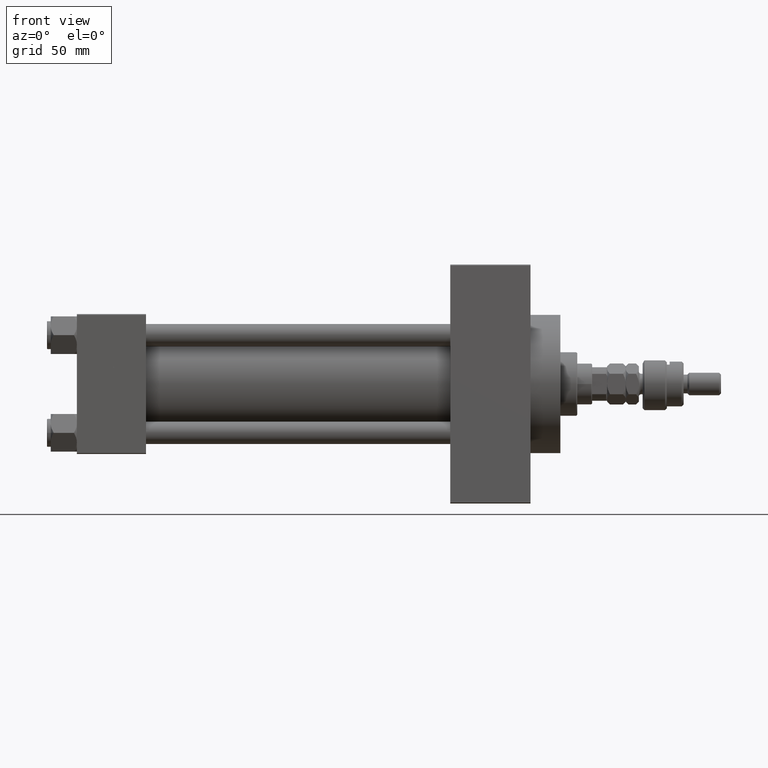
[diagram: clean part render]
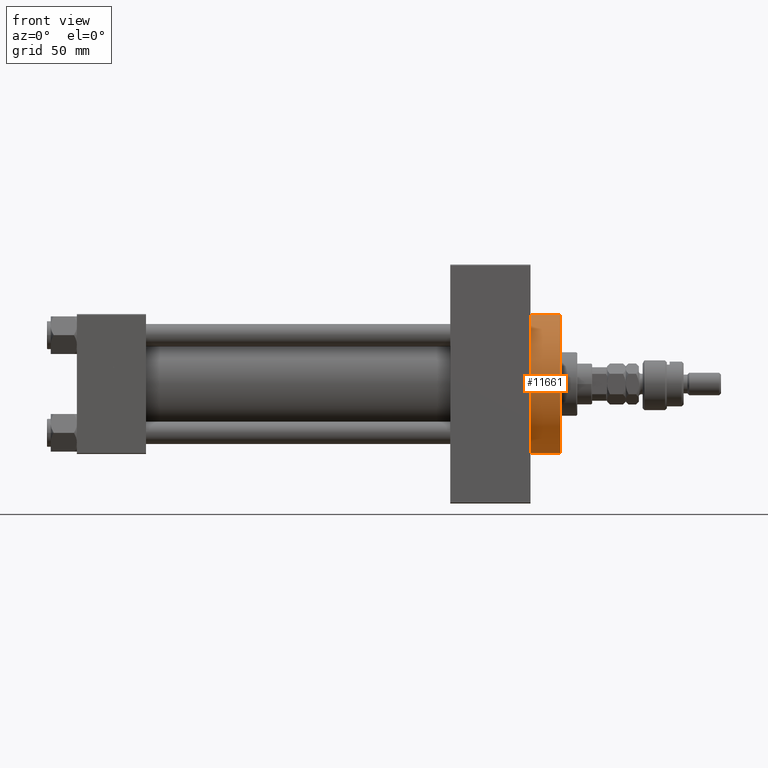
[diagram: same view with one face highlighted and labeled with its STEP entity id]
A machine part, front view. The second image highlights one B-rep face of the part: STEP entity #11661.
In plain terms, the highlighted cylindrical surface (partial cylindrical patch) has radius 37 mm, axis along (-1, -0, -0).
Its self-contained STEP definition (entity closure, byte-faithful):
#974 = CYLINDRICAL_SURFACE ( 'NONE', #12734, 37.00000000000000000 ) ;
#2771 = EDGE_CURVE ( 'NONE', #3151, #33728, #6030, .T. ) ;
#3151 = VERTEX_POINT ( 'NONE', #37324 ) ;
#3369 = EDGE_CURVE ( 'NONE', #3151, #33193, #7654, .T. ) ;
#3888 = AXIS2_PLACEMENT_3D ( 'NONE', #38245, #13401, #33500 ) ;
#6030 = LINE ( 'NONE', #13718, #12710 ) ;
#6259 = CARTESIAN_POINT ( 'NONE',  ( 243.0000000000000000, 0.000000000000000000, 37.00000000000000000 ) ) ;
#7497 = CARTESIAN_POINT ( 'NONE',  ( 259.0000000000000000, 4.531193156845206793E-15, -37.00000000000000000 ) ) ;
#7654 = CIRCLE ( 'NONE', #37199, 37.00000000000000000 ) ;
#9255 = EDGE_LOOP ( 'NONE', ( #21331, #33794, #20257, #39585 ) ) ;
#10228 = DIRECTION ( 'NONE',  ( 0.000000000000000000, 0.000000000000000000, 1.000000000000000000 ) ) ;
#11661 = ADVANCED_FACE ( 'NONE', ( #44121 ), #974, .T. ) ;
#12710 = VECTOR ( 'NONE', #46506, 1000.000000000000000 ) ;
#12734 = AXIS2_PLACEMENT_3D ( 'NONE', #17886, #17625, #10228 ) ;
#13401 = DIRECTION ( 'NONE',  ( 1.000000000000000000, 0.000000000000000000, 0.000000000000000000 ) ) ;
#13718 = CARTESIAN_POINT ( 'NONE',  ( 259.0000000000000000, 0.000000000000000000, 37.00000000000000000 ) ) ;
#17625 = DIRECTION ( 'NONE',  ( -1.000000000000000000, -0.000000000000000000, -0.000000000000000000 ) ) ;
#17886 = CARTESIAN_POINT ( 'NONE',  ( 259.0000000000000000, 0.000000000000000000, 0.000000000000000000 ) ) ;
#20257 = ORIENTED_EDGE ( 'NONE', *, *, #2771, .T. ) ;
#21331 = ORIENTED_EDGE ( 'NONE', *, *, #38839, .F. ) ;
#23286 = DIRECTION ( 'NONE',  ( 0.000000000000000000, 0.000000000000000000, -1.000000000000000000 ) ) ;
#23834 = VECTOR ( 'NONE', #47197, 1000.000000000000000 ) ;
#24770 = VERTEX_POINT ( 'NONE', #42803 ) ;
#26694 = CIRCLE ( 'NONE', #3888, 37.00000000000000000 ) ;
#33193 = VERTEX_POINT ( 'NONE', #48320 ) ;
#33500 = DIRECTION ( 'NONE',  ( 0.000000000000000000, 0.000000000000000000, -1.000000000000000000 ) ) ;
#33728 = VERTEX_POINT ( 'NONE', #6259 ) ;
#33794 = ORIENTED_EDGE ( 'NONE', *, *, #3369, .F. ) ;
#37199 = AXIS2_PLACEMENT_3D ( 'NONE', #47889, #43401, #23286 ) ;
#37324 = CARTESIAN_POINT ( 'NONE',  ( 259.0000000000000000, 0.000000000000000000, 37.00000000000000000 ) ) ;
#38245 = CARTESIAN_POINT ( 'NONE',  ( 243.0000000000000000, 0.000000000000000000, 0.000000000000000000 ) ) ;
#38839 = EDGE_CURVE ( 'NONE', #33193, #24770, #51677, .T. ) ;
#39585 = ORIENTED_EDGE ( 'NONE', *, *, #49708, .T. ) ;
#42803 = CARTESIAN_POINT ( 'NONE',  ( 243.0000000000000000, 4.531193156845206793E-15, -37.00000000000000000 ) ) ;
#43401 = DIRECTION ( 'NONE',  ( 1.000000000000000000, 0.000000000000000000, 0.000000000000000000 ) ) ;
#44121 = FACE_OUTER_BOUND ( 'NONE', #9255, .T. ) ;
#46506 = DIRECTION ( 'NONE',  ( -1.000000000000000000, -0.000000000000000000, -0.000000000000000000 ) ) ;
#47197 = DIRECTION ( 'NONE',  ( -1.000000000000000000, -0.000000000000000000, -0.000000000000000000 ) ) ;
#47889 = CARTESIAN_POINT ( 'NONE',  ( 259.0000000000000000, 0.000000000000000000, 0.000000000000000000 ) ) ;
#48320 = CARTESIAN_POINT ( 'NONE',  ( 259.0000000000000000, 4.531193156845206793E-15, -37.00000000000000000 ) ) ;
#49708 = EDGE_CURVE ( 'NONE', #33728, #24770, #26694, .T. ) ;
#51677 = LINE ( 'NONE', #7497, #23834 ) ;